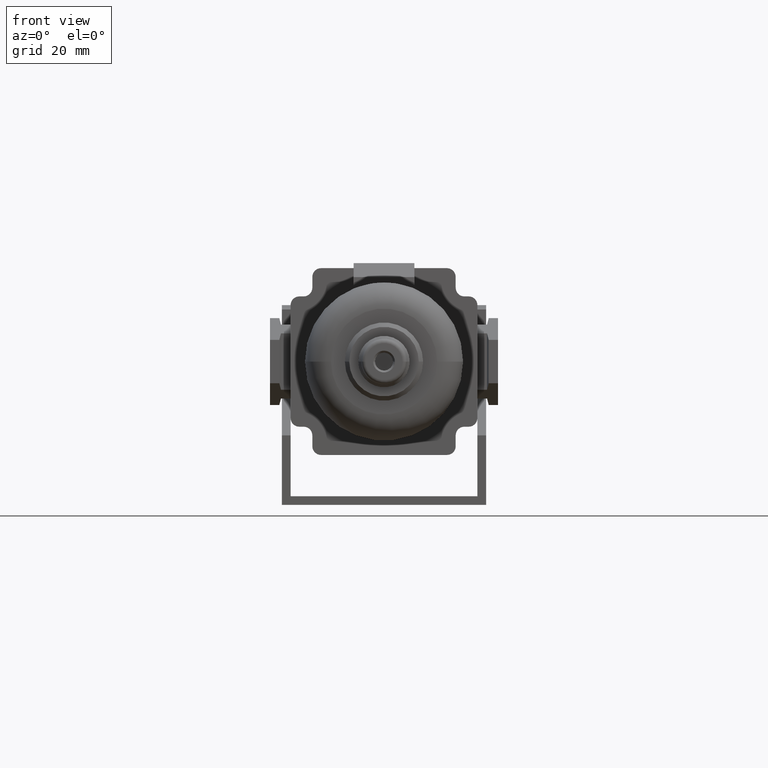
[diagram: clean part render]
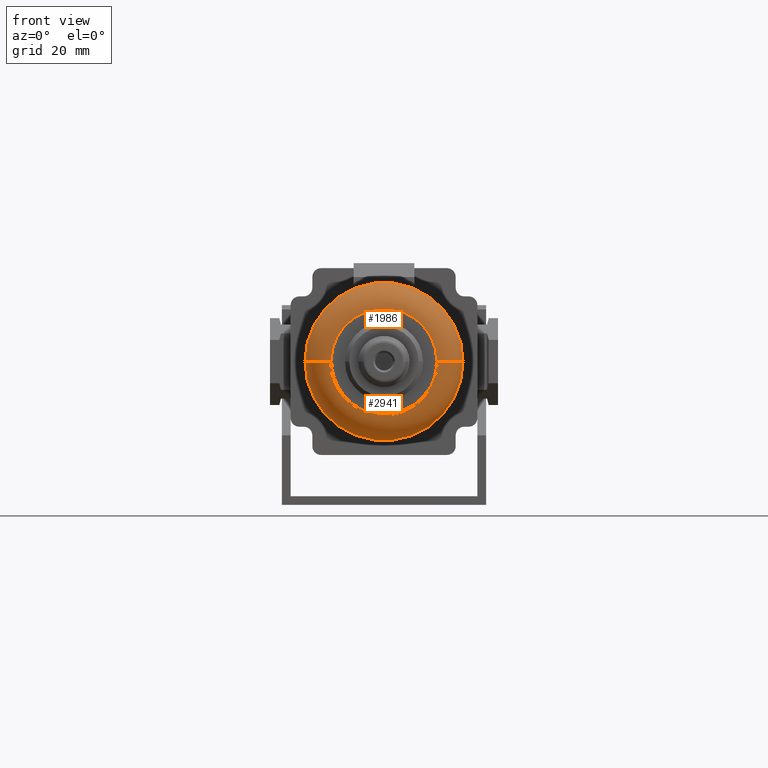
[diagram: same view with one multi-face feature highlighted, each face labeled with its STEP entity id]
A machine part, front view. The highlighted faces form ONE feature: a constant-radius fillet chain: 2 tangent blend faces with common blend radius 6 mm. The faces share edges in the B-rep.
Their STEP definitions:
[1] entity #2941 (Torus):
#38 = EDGE_CURVE ( 'NONE', #530, #2508, #4116, .T. ) ;
#94 = DIRECTION ( 'NONE',  ( 1.615544574432586928E-15, 4.782972756915486833E-31, 1.000000000000000000 ) ) ;
#97 = VERTEX_POINT ( 'NONE', #262 ) ;
#132 = DIRECTION ( 'NONE',  ( 2.960594732333750117E-16, -1.000000000000000000, 0.0000000000000000000 ) ) ;
#200 = CARTESIAN_POINT ( 'NONE',  ( 12.19999999999999929, -105.0000000000000000, 0.0000000000000000000 ) ) ;
#210 = CARTESIAN_POINT ( 'NONE',  ( -18.20000000000000639, -99.00000000000069633, 0.0000000000000000000 ) ) ;
#241 = CARTESIAN_POINT ( 'NONE',  ( 15.22171388222539790, -104.2427183301262374, -2.595697145155370726E-14 ) ) ;
#262 = CARTESIAN_POINT ( 'NONE',  ( -12.19999999999999396, -105.0000000000006963, 0.0000000000000000000 ) ) ;
#530 = VERTEX_POINT ( 'NONE', #4167 ) ;
#590 = CARTESIAN_POINT ( 'NONE',  ( 16.99800105438907494, -102.6872803198501884, -2.814951074689471532E-14 ) ) ;
#918 = AXIS2_PLACEMENT_3D ( 'NONE', #3119, #132, #94 ) ;
#956 = CARTESIAN_POINT ( 'NONE',  ( -17.44271833012555106, -102.0217138822260949, 1.375530141843569497E-14 ) ) ;
#1018 = CARTESIAN_POINT ( 'NONE',  ( 12.19999999999999929, -105.0000000000000000, 0.0000000000000000000 ) ) ;
#1147 = VERTEX_POINT ( 'NONE', #4176 ) ;
#1209 = CARTESIAN_POINT ( 'NONE',  ( -4.440892098500619851E-15, -105.0000000000000000, 0.0000000000000000000 ) ) ;
#1244 = CARTESIAN_POINT ( 'NONE',  ( -18.20000000000000639, -99.78539816339814195, -4.652840319755261259E-16 ) ) ;
#1418 = DIRECTION ( 'NONE',  ( 2.960594732333750117E-16, -1.000000000000000000, -0.0000000000000000000 ) ) ;
#1534 = ORIENTED_EDGE ( 'NONE', *, *, #2540, .T. ) ;
#1546 = AXIS2_PLACEMENT_3D ( 'NONE', #4090, #1418, #3762 ) ;
#1549 = CARTESIAN_POINT ( 'NONE',  ( -16.99800105438908560, -102.6872803198501884, 1.097059827403025954E-14 ) ) ;
#1553 = DIRECTION ( 'NONE',  ( 2.960594732333750117E-16, -1.000000000000000000, -0.0000000000000000000 ) ) ;
#1837 = EDGE_CURVE ( 'NONE', #97, #2508, #3506, .T. ) ;
#1894 = CIRCLE ( 'NONE', #1546, 18.19999999999999929 ) ;
#2185 = ORIENTED_EDGE ( 'NONE', *, *, #1837, .F. ) ;
#2212 = CARTESIAN_POINT ( 'NONE',  ( -15.88728031984949496, -103.7980010543897578, 1.496268511514575651E-14 ) ) ;
#2221 = CARTESIAN_POINT ( 'NONE',  ( 13.77048730615568672, -104.8438360600105881, -2.620700283703141499E-14 ) ) ;
#2245 = CARTESIAN_POINT ( 'NONE',  ( 18.19999999999999929, -99.00000000000000000, 0.0000000000000000000 ) ) ;
#2276 = CARTESIAN_POINT ( 'NONE',  ( -13.77048730615568317, -104.8438360600105881, 1.228995486273112714E-14 ) ) ;
#2508 = VERTEX_POINT ( 'NONE', #1018 ) ;
#2540 = EDGE_CURVE ( 'NONE', #1147, #530, #1894, .T. ) ;
#2650 = TOROIDAL_SURFACE ( 'NONE', #918, 12.19999999999999929, 6.000000000000000000 ) ;
#2820 = B_SPLINE_CURVE_WITH_KNOTS ( 'NONE', 3,
 ( #210, #1244, #4244, #956, #1549, #2212, #3938, #2276, #2934, #3569 ),
 .UNSPECIFIED., .F., .F.,
 ( 4, 2, 2, 2, 4 ),
 ( 0.0000000000000000000, 0.3926990816987239175, 0.7853981633974478349, 1.178097245096171752, 1.570796326794895670 ),
 .UNSPECIFIED. ) ;
#2858 = CARTESIAN_POINT ( 'NONE',  ( 15.88728031984948785, -103.7980010543897436, -3.101905534204862094E-14 ) ) ;
#2934 = CARTESIAN_POINT ( 'NONE',  ( -12.98539816339745379, -105.0000000000007105, 9.337284051241507123E-15 ) ) ;
#2941 = ADVANCED_FACE ( 'NONE', ( #4042 ), #2650, .T. ) ;
#3070 = ORIENTED_EDGE ( 'NONE', *, *, #38, .T. ) ;
#3119 = CARTESIAN_POINT ( 'NONE',  ( -6.938893903907229955E-15, -99.00000000000069633, 0.0000000000000000000 ) ) ;
#3186 = CARTESIAN_POINT ( 'NONE',  ( 18.04383606000989104, -100.5704873061563944, -3.246522035998465996E-14 ) ) ;
#3336 = AXIS2_PLACEMENT_3D ( 'NONE', #1209, #1553, #4227 ) ;
#3503 = EDGE_CURVE ( 'NONE', #1147, #97, #2820, .T. ) ;
#3506 = CIRCLE ( 'NONE', #3336, 12.19999999999999929 ) ;
#3569 = CARTESIAN_POINT ( 'NONE',  ( -12.19999999999999396, -105.0000000000006963, 0.0000000000000000000 ) ) ;
#3577 = CARTESIAN_POINT ( 'NONE',  ( 17.44271833012553330, -102.0217138822260949, -3.138366433730273395E-14 ) ) ;
#3705 = ORIENTED_EDGE ( 'NONE', *, *, #3503, .F. ) ;
#3762 = DIRECTION ( 'NONE',  ( 1.000000000000000000, 0.0000000000000000000, 0.0000000000000000000 ) ) ;
#3887 = CARTESIAN_POINT ( 'NONE',  ( 18.19999999999999574, -99.78539816339814195, -1.792842038101493846E-14 ) ) ;
#3938 = CARTESIAN_POINT ( 'NONE',  ( -15.22171388222540145, -104.2427183301262659, 1.057325135217086567E-14 ) ) ;
#3995 = EDGE_LOOP ( 'NONE', ( #1534, #3070, #2185, #3705 ) ) ;
#4042 = FACE_OUTER_BOUND ( 'NONE', #3995, .T. ) ;
#4090 = CARTESIAN_POINT ( 'NONE',  ( -6.217248937900870315E-15, -99.00000000000000000, 0.0000000000000000000 ) ) ;
#4116 = B_SPLINE_CURVE_WITH_KNOTS ( 'NONE', 3,
 ( #2245, #3887, #3186, #3577, #590, #2858, #241, #2221, #4195, #200 ),
 .UNSPECIFIED., .F., .F.,
 ( 4, 2, 2, 2, 4 ),
 ( 0.0000000000000000000, 0.3926990816987237509, 0.7853981633974475018, 1.178097245096171308, 1.570796326794895004 ),
 .UNSPECIFIED. ) ;
#4167 = CARTESIAN_POINT ( 'NONE',  ( 18.19999999999999929, -99.00000000000000000, 0.0000000000000000000 ) ) ;
#4176 = CARTESIAN_POINT ( 'NONE',  ( -18.20000000000000639, -99.00000000000069633, 0.0000000000000000000 ) ) ;
#4195 = CARTESIAN_POINT ( 'NONE',  ( 12.98539816339745023, -105.0000000000007105, -2.246088710083064307E-14 ) ) ;
#4227 = DIRECTION ( 'NONE',  ( 1.000000000000000000, 0.0000000000000000000, 0.0000000000000000000 ) ) ;
#4244 = CARTESIAN_POINT ( 'NONE',  ( -18.04383606000990170, -100.5704873061563944, 1.422934195535385997E-14 ) ) ;
[2] entity #1986 (Torus):
#38 = EDGE_CURVE ( 'NONE', #530, #2508, #4116, .T. ) ;
#58 = DIRECTION ( 'NONE',  ( 1.000000000000000000, 0.0000000000000000000, 0.0000000000000000000 ) ) ;
#97 = VERTEX_POINT ( 'NONE', #262 ) ;
#200 = CARTESIAN_POINT ( 'NONE',  ( 12.19999999999999929, -105.0000000000000000, 0.0000000000000000000 ) ) ;
#210 = CARTESIAN_POINT ( 'NONE',  ( -18.20000000000000639, -99.00000000000069633, 0.0000000000000000000 ) ) ;
#241 = CARTESIAN_POINT ( 'NONE',  ( 15.22171388222539790, -104.2427183301262374, -2.595697145155370726E-14 ) ) ;
#262 = CARTESIAN_POINT ( 'NONE',  ( -12.19999999999999396, -105.0000000000006963, 0.0000000000000000000 ) ) ;
#294 = ORIENTED_EDGE ( 'NONE', *, *, #2410, .F. ) ;
#385 = DIRECTION ( 'NONE',  ( 2.960594732333750117E-16, -1.000000000000000000, 0.0000000000000000000 ) ) ;
#530 = VERTEX_POINT ( 'NONE', #4167 ) ;
#590 = CARTESIAN_POINT ( 'NONE',  ( 16.99800105438907494, -102.6872803198501884, -2.814951074689471532E-14 ) ) ;
#687 = FACE_OUTER_BOUND ( 'NONE', #2748, .T. ) ;
#956 = CARTESIAN_POINT ( 'NONE',  ( -17.44271833012555106, -102.0217138822260949, 1.375530141843569497E-14 ) ) ;
#1018 = CARTESIAN_POINT ( 'NONE',  ( 12.19999999999999929, -105.0000000000000000, 0.0000000000000000000 ) ) ;
#1047 = TOROIDAL_SURFACE ( 'NONE', #4249, 12.19999999999999929, 6.000000000000000000 ) ;
#1147 = VERTEX_POINT ( 'NONE', #4176 ) ;
#1244 = CARTESIAN_POINT ( 'NONE',  ( -18.20000000000000639, -99.78539816339814195, -4.652840319755261259E-16 ) ) ;
#1354 = DIRECTION ( 'NONE',  ( 2.960594732333750117E-16, -1.000000000000000000, -0.0000000000000000000 ) ) ;
#1549 = CARTESIAN_POINT ( 'NONE',  ( -16.99800105438908560, -102.6872803198501884, 1.097059827403025954E-14 ) ) ;
#1658 = ORIENTED_EDGE ( 'NONE', *, *, #2916, .T. ) ;
#1986 = ADVANCED_FACE ( 'NONE', ( #687 ), #1047, .T. ) ;
#2212 = CARTESIAN_POINT ( 'NONE',  ( -15.88728031984949496, -103.7980010543897578, 1.496268511514575651E-14 ) ) ;
#2221 = CARTESIAN_POINT ( 'NONE',  ( 13.77048730615568672, -104.8438360600105881, -2.620700283703141499E-14 ) ) ;
#2245 = CARTESIAN_POINT ( 'NONE',  ( 18.19999999999999929, -99.00000000000000000, 0.0000000000000000000 ) ) ;
#2276 = CARTESIAN_POINT ( 'NONE',  ( -13.77048730615568317, -104.8438360600105881, 1.228995486273112714E-14 ) ) ;
#2410 = EDGE_CURVE ( 'NONE', #2508, #97, #2781, .T. ) ;
#2448 = AXIS2_PLACEMENT_3D ( 'NONE', #2466, #2746, #3034 ) ;
#2466 = CARTESIAN_POINT ( 'NONE',  ( -6.217248937900870315E-15, -99.00000000000000000, 0.0000000000000000000 ) ) ;
#2508 = VERTEX_POINT ( 'NONE', #1018 ) ;
#2746 = DIRECTION ( 'NONE',  ( 2.960594732333750117E-16, -1.000000000000000000, -0.0000000000000000000 ) ) ;
#2748 = EDGE_LOOP ( 'NONE', ( #294, #3337, #1658, #3055 ) ) ;
#2781 = CIRCLE ( 'NONE', #2930, 12.19999999999999929 ) ;
#2820 = B_SPLINE_CURVE_WITH_KNOTS ( 'NONE', 3,
 ( #210, #1244, #4244, #956, #1549, #2212, #3938, #2276, #2934, #3569 ),
 .UNSPECIFIED., .F., .F.,
 ( 4, 2, 2, 2, 4 ),
 ( 0.0000000000000000000, 0.3926990816987239175, 0.7853981633974478349, 1.178097245096171752, 1.570796326794895670 ),
 .UNSPECIFIED. ) ;
#2858 = CARTESIAN_POINT ( 'NONE',  ( 15.88728031984948785, -103.7980010543897436, -3.101905534204862094E-14 ) ) ;
#2916 = EDGE_CURVE ( 'NONE', #530, #1147, #3767, .T. ) ;
#2930 = AXIS2_PLACEMENT_3D ( 'NONE', #3958, #1354, #58 ) ;
#2934 = CARTESIAN_POINT ( 'NONE',  ( -12.98539816339745379, -105.0000000000007105, 9.337284051241507123E-15 ) ) ;
#3034 = DIRECTION ( 'NONE',  ( 1.000000000000000000, 0.0000000000000000000, 0.0000000000000000000 ) ) ;
#3055 = ORIENTED_EDGE ( 'NONE', *, *, #3503, .T. ) ;
#3186 = CARTESIAN_POINT ( 'NONE',  ( 18.04383606000989104, -100.5704873061563944, -3.246522035998465996E-14 ) ) ;
#3323 = DIRECTION ( 'NONE',  ( -6.049014748177262516E-16, -1.790868119926276971E-31, -1.000000000000000000 ) ) ;
#3337 = ORIENTED_EDGE ( 'NONE', *, *, #38, .F. ) ;
#3503 = EDGE_CURVE ( 'NONE', #1147, #97, #2820, .T. ) ;
#3569 = CARTESIAN_POINT ( 'NONE',  ( -12.19999999999999396, -105.0000000000006963, 0.0000000000000000000 ) ) ;
#3577 = CARTESIAN_POINT ( 'NONE',  ( 17.44271833012553330, -102.0217138822260949, -3.138366433730273395E-14 ) ) ;
#3767 = CIRCLE ( 'NONE', #2448, 18.19999999999999929 ) ;
#3887 = CARTESIAN_POINT ( 'NONE',  ( 18.19999999999999574, -99.78539816339814195, -1.792842038101493846E-14 ) ) ;
#3938 = CARTESIAN_POINT ( 'NONE',  ( -15.22171388222540145, -104.2427183301262659, 1.057325135217086567E-14 ) ) ;
#3958 = CARTESIAN_POINT ( 'NONE',  ( -4.440892098500619851E-15, -105.0000000000000000, 0.0000000000000000000 ) ) ;
#4003 = CARTESIAN_POINT ( 'NONE',  ( -6.938893903907229955E-15, -99.00000000000069633, 0.0000000000000000000 ) ) ;
#4116 = B_SPLINE_CURVE_WITH_KNOTS ( 'NONE', 3,
 ( #2245, #3887, #3186, #3577, #590, #2858, #241, #2221, #4195, #200 ),
 .UNSPECIFIED., .F., .F.,
 ( 4, 2, 2, 2, 4 ),
 ( 0.0000000000000000000, 0.3926990816987237509, 0.7853981633974475018, 1.178097245096171308, 1.570796326794895004 ),
 .UNSPECIFIED. ) ;
#4167 = CARTESIAN_POINT ( 'NONE',  ( 18.19999999999999929, -99.00000000000000000, 0.0000000000000000000 ) ) ;
#4176 = CARTESIAN_POINT ( 'NONE',  ( -18.20000000000000639, -99.00000000000069633, 0.0000000000000000000 ) ) ;
#4195 = CARTESIAN_POINT ( 'NONE',  ( 12.98539816339745023, -105.0000000000007105, -2.246088710083064307E-14 ) ) ;
#4244 = CARTESIAN_POINT ( 'NONE',  ( -18.04383606000990170, -100.5704873061563944, 1.422934195535385997E-14 ) ) ;
#4249 = AXIS2_PLACEMENT_3D ( 'NONE', #4003, #385, #3323 ) ;